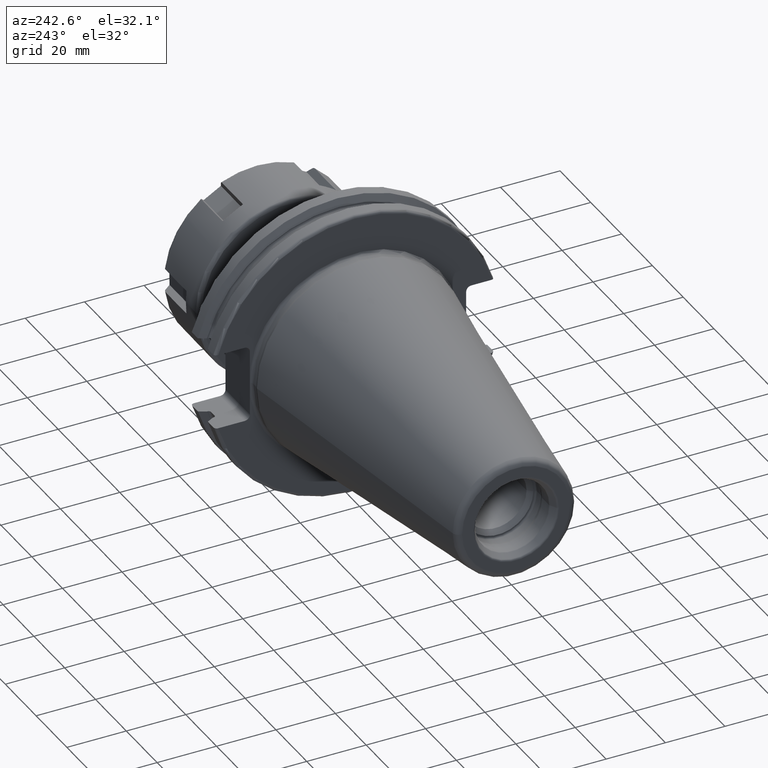
[diagram: clean part render]
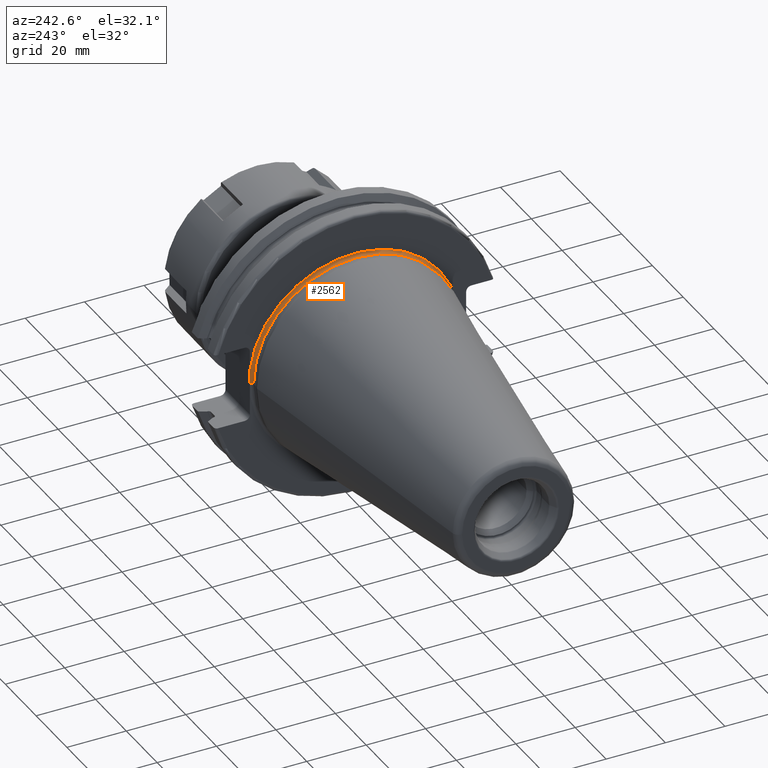
[diagram: same view with one face highlighted and labeled with its STEP entity id]
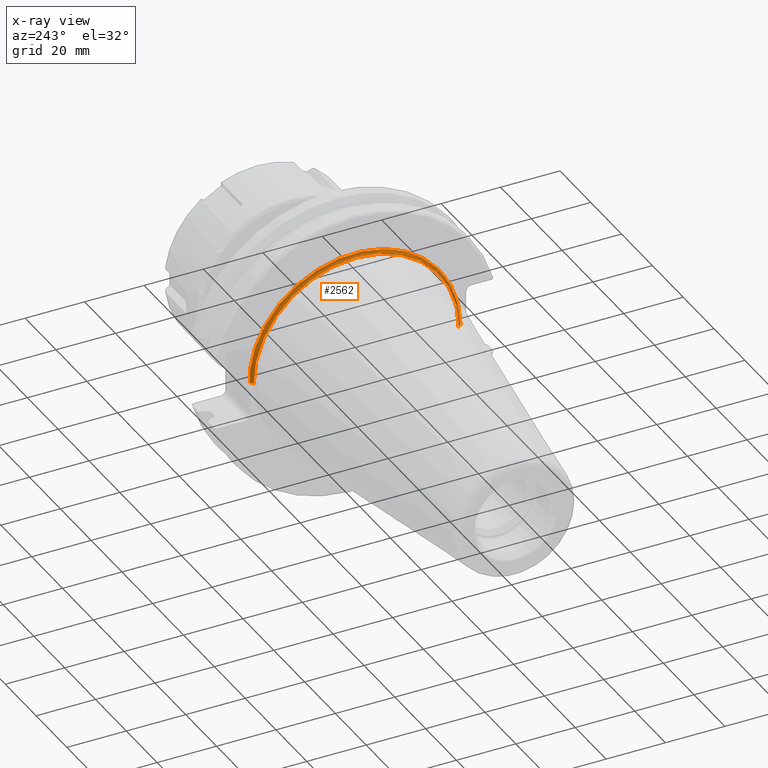
[diagram: x-ray of the same camera — body ghosted, the highlighted face saturated]
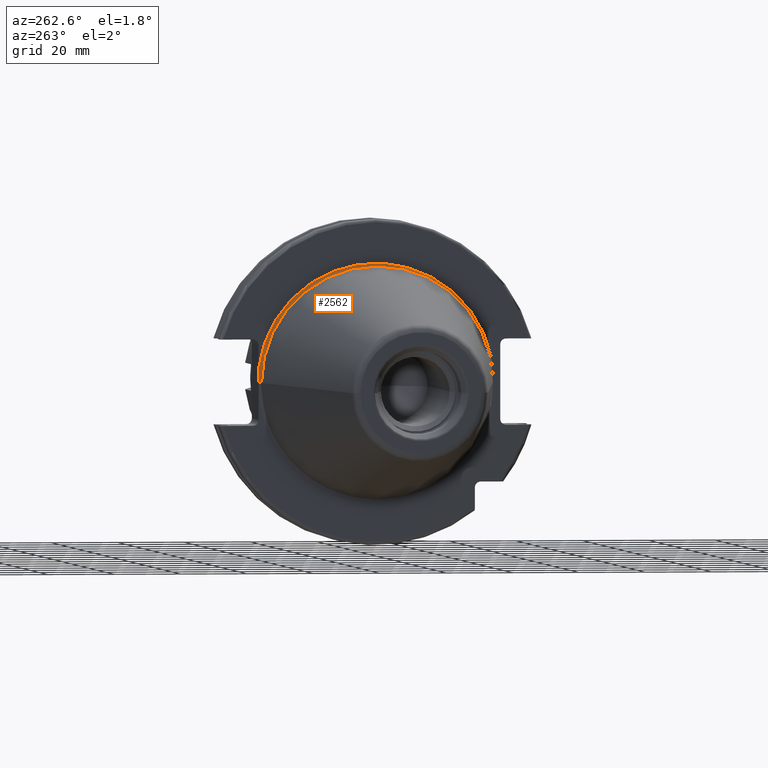
[diagram: same view with one face highlighted and labeled with its STEP entity id]
A machine part, auxiliary view. The second image highlights one B-rep face of the part: STEP entity #2562.
The next image is the same camera in x-ray: the body ghosted, the highlighted face saturated — about 3% of this face is hidden behind the body in this view.
A second angle (auxiliary view) of the same face is appended — the face is thin or edge-on in the first view.
In plain terms, the highlighted toroidal blend (fillet) surface has major radius 35.575 mm and minor (blend) radius 1 mm.
Its self-contained STEP definition (entity closure, byte-faithful):
#78=CARTESIAN_POINT('',(2.2E0,0.E0,0.E0));
#79=DIRECTION('',(1.E0,0.E0,0.E0));
#80=DIRECTION('',(0.E0,1.E0,0.E0));
#81=AXIS2_PLACEMENT_3D('',#78,#79,#80);
#107=CARTESIAN_POINT('',(2.2E0,3.5575E1,0.E0));
#108=DIRECTION('',(0.E0,0.E0,-1.E0));
#109=DIRECTION('',(9.614442261515E-1,-2.75E-1,0.E0));
#110=AXIS2_PLACEMENT_3D('',#107,#108,#109);
#112=CARTESIAN_POINT('',(2.2E0,-3.5575E1,0.E0));
#113=DIRECTION('',(0.E0,0.E0,1.E0));
#114=DIRECTION('',(1.E0,0.E0,0.E0));
#115=AXIS2_PLACEMENT_3D('',#112,#113,#114);
#936=CARTESIAN_POINT('',(3.2E0,3.53E1,4.414818795828E0));
#937=CARTESIAN_POINT('',(3.2E0,3.53E1,4.213098987331E0));
#938=CARTESIAN_POINT('',(3.198126239348E0,3.53E1,3.808889642023E0));
#939=CARTESIAN_POINT('',(3.191792541487E0,3.53E1,3.202078124088E0));
#940=CARTESIAN_POINT('',(3.183664786024E0,3.53E1,2.589329618622E0));
#941=CARTESIAN_POINT('',(3.175245424270E0,3.53E1,1.967199873297E0));
#942=CARTESIAN_POINT('',(3.167873523896E0,3.53E1,1.331533559003E0));
#943=CARTESIAN_POINT('',(3.162733016852E0,3.53E1,6.790196322900E-1));
#944=CARTESIAN_POINT('',(3.161444226151E0,3.53E1,2.286685292051E-1));
#945=CARTESIAN_POINT('',(3.161444226151E0,3.53E1,-1.048836461230E-13));
#947=CARTESIAN_POINT('',(3.2E0,0.E0,0.E0));
#948=DIRECTION('',(1.E0,0.E0,0.E0));
#949=DIRECTION('',(0.E0,9.922698524245E-1,1.240989120402E-1));
#950=AXIS2_PLACEMENT_3D('',#947,#948,#949);
#1326=CARTESIAN_POINT('',(2.2E0,3.4575E1,0.E0));
#1328=VERTEX_POINT('',#1326);
#1330=CARTESIAN_POINT('',(3.2E0,-3.5575E1,0.E0));
#1331=CARTESIAN_POINT('',(2.2E0,-3.4575E1,0.E0));
#1332=VERTEX_POINT('',#1330);
#1333=VERTEX_POINT('',#1331);
#1456=VERTEX_POINT('',#936);
#1457=VERTEX_POINT('',#945);
#2550=CARTESIAN_POINT('',(2.2E0,0.E0,0.E0));
#2551=DIRECTION('',(1.E0,0.E0,0.E0));
#2552=DIRECTION('',(0.E0,-1.E0,0.E0));
#2553=AXIS2_PLACEMENT_3D('',#2550,#2551,#2552);
#2554=TOROIDAL_SURFACE('',#2553,3.5575E1,1.E0);
#2555=ORIENTED_EDGE('',*,*,#1746,.F.);
#2556=ORIENTED_EDGE('',*,*,#1982,.T.);
#2557=ORIENTED_EDGE('',*,*,#1730,.T.);
#2558=ORIENTED_EDGE('',*,*,#1699,.F.);
#2559=ORIENTED_EDGE('',*,*,#1727,.F.);
#2560=EDGE_LOOP('',(#2555,#2556,#2557,#2558,#2559));
#2561=FACE_OUTER_BOUND('',#2560,.F.);
#2562=ADVANCED_FACE('',(#2561),#2554,.F.);
#82=CIRCLE('',#81,3.4575E1);
#111=CIRCLE('',#110,1.E0);
#116=CIRCLE('',#115,1.E0);
#946=B_SPLINE_CURVE_WITH_KNOTS('',3,(#936,#937,#938,#939,#940,#941,#942,#943,
#944,#945),.UNSPECIFIED.,.F.,.F.,(4,1,1,1,1,1,1,4),(0.E0,1.428571428571E-1,
2.857142857143E-1,4.285714285714E-1,5.714285714286E-1,7.142857142857E-1,
8.571428571429E-1,1.E0),.UNSPECIFIED.);
#951=CIRCLE('',#950,3.5575E1);
#1699=EDGE_CURVE('',#1328,#1333,#82,.T.);
#1727=EDGE_CURVE('',#1457,#1328,#111,.T.);
#1730=EDGE_CURVE('',#1332,#1333,#116,.T.);
#1746=EDGE_CURVE('',#1456,#1457,#946,.T.);
#1982=EDGE_CURVE('',#1456,#1332,#951,.T.);